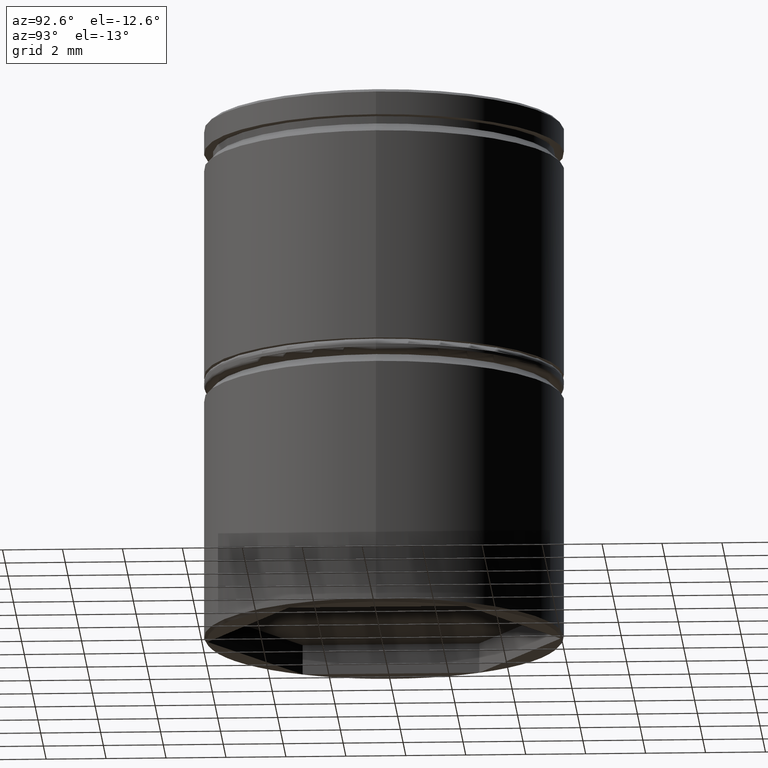
[diagram: clean part render]
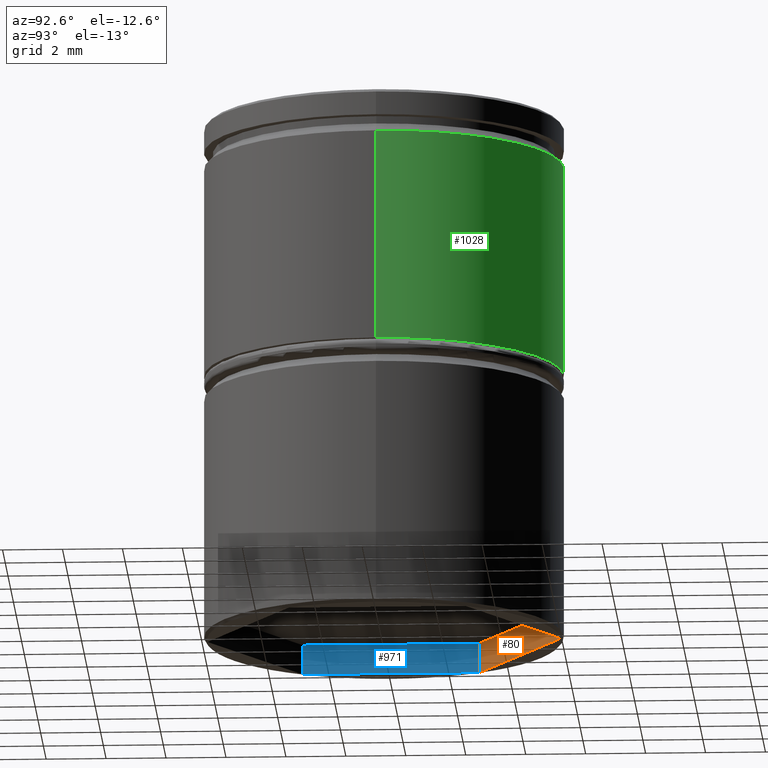
[diagram: same view with three faces highlighted in distinct colors, each labeled with its STEP entity id]
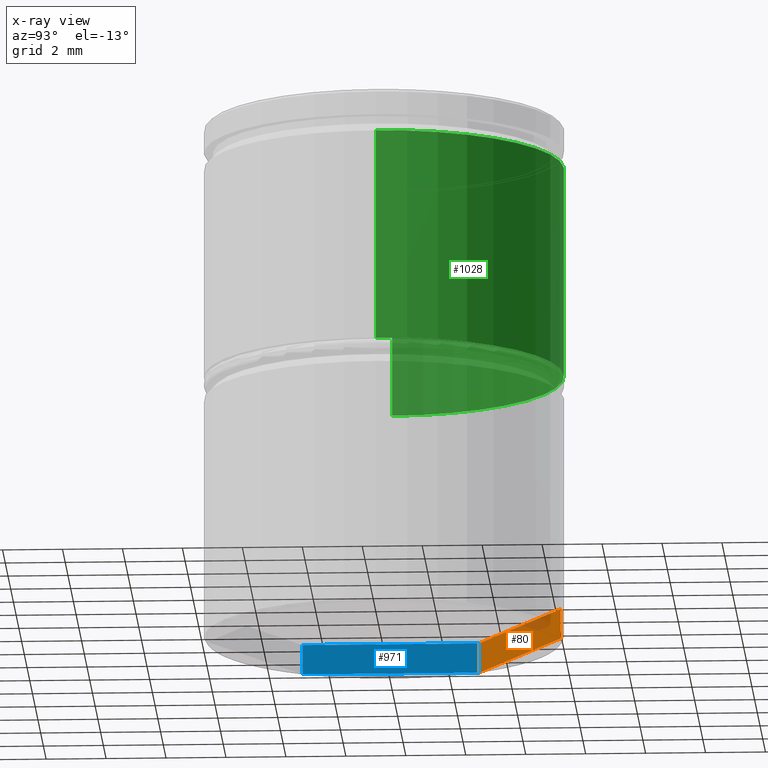
[diagram: x-ray of the same camera — body ghosted, the three highlighted faces saturated]
A machine part, auxiliary view with three faces highlighted in distinct colors.
The next image is the same camera in x-ray (body ghosted, the three faces saturated) — at least one of them is partly hidden behind the body in this view.
Their STEP definitions:

[orange] entity #80 — the highlighted planar face has unit normal (-0.5, 0.866, 0).
#12 = CARTESIAN_POINT ( 'NONE',  ( -5.100000000000000533, 2.944486372867091806, -16.50000000000000000 ) ) ;
#80 = ADVANCED_FACE ( 'NONE', ( #333 ), #350, .F. ) ;
#85 = CARTESIAN_POINT ( 'NONE',  ( -5.100000000000000533, 2.944486372867091806, -17.50000000000000000 ) ) ;
#113 = CARTESIAN_POINT ( 'NONE',  ( -5.100000000000000533, 2.944486372867091806, -16.50000000000000000 ) ) ;
#189 = VERTEX_POINT ( 'NONE', #113 ) ;
#213 = DIRECTION ( 'NONE',  ( -0.000000000000000000, -0.000000000000000000, -1.000000000000000000 ) ) ;
#281 = AXIS2_PLACEMENT_3D ( 'NONE', #12, #343, #711 ) ;
#290 = CARTESIAN_POINT ( 'NONE',  ( -5.100000000000000533, 2.944486372867091806, -16.50000000000000000 ) ) ;
#318 = VERTEX_POINT ( 'NONE', #339 ) ;
#328 = CARTESIAN_POINT ( 'NONE',  ( -5.100000000000000533, 2.944486372867091806, -16.50000000000000000 ) ) ;
#333 = FACE_OUTER_BOUND ( 'NONE', #979, .T. ) ;
#337 = DIRECTION ( 'NONE',  ( 0.8660254037844389297, 0.4999999999999995559, 0.000000000000000000 ) ) ;
#339 = CARTESIAN_POINT ( 'NONE',  ( -5.100000000000000533, 2.944486372867091806, -17.50000000000000000 ) ) ;
#343 = DIRECTION ( 'NONE',  ( -0.4999999999999995004, 0.8660254037844389297, 0.000000000000000000 ) ) ;
#350 = PLANE ( 'NONE',  #281 ) ;
#368 = ORIENTED_EDGE ( 'NONE', *, *, #581, .F. ) ;
#409 = CARTESIAN_POINT ( 'NONE',  ( 0.000000000000000000, 5.888972745734180059, -16.50000000000000000 ) ) ;
#431 = VERTEX_POINT ( 'NONE', #833 ) ;
#448 = CARTESIAN_POINT ( 'NONE',  ( 0.000000000000000000, 5.888972745734180059, -16.50000000000000000 ) ) ;
#543 = ORIENTED_EDGE ( 'NONE', *, *, #756, .T. ) ;
#555 = ORIENTED_EDGE ( 'NONE', *, *, #784, .T. ) ;
#581 = EDGE_CURVE ( 'NONE', #786, #431, #1007, .T. ) ;
#634 = LINE ( 'NONE', #328, #982 ) ;
#687 = ORIENTED_EDGE ( 'NONE', *, *, #1020, .F. ) ;
#711 = DIRECTION ( 'NONE',  ( -0.8660254037844389297, -0.4999999999999995004, 0.000000000000000000 ) ) ;
#731 = VECTOR ( 'NONE', #337, 1000.000000000000114 ) ;
#756 = EDGE_CURVE ( 'NONE', #318, #431, #867, .T. ) ;
#765 = VECTOR ( 'NONE', #213, 1000.000000000000000 ) ;
#768 = DIRECTION ( 'NONE',  ( 0.8660254037844389297, 0.4999999999999995559, 0.000000000000000000 ) ) ;
#784 = EDGE_CURVE ( 'NONE', #189, #318, #634, .T. ) ;
#786 = VERTEX_POINT ( 'NONE', #409 ) ;
#833 = CARTESIAN_POINT ( 'NONE',  ( 0.000000000000000000, 5.888972745734180059, -17.50000000000000000 ) ) ;
#867 = LINE ( 'NONE', #85, #731 ) ;
#876 = VECTOR ( 'NONE', #768, 1000.000000000000114 ) ;
#927 = LINE ( 'NONE', #290, #876 ) ;
#951 = DIRECTION ( 'NONE',  ( -0.000000000000000000, -0.000000000000000000, -1.000000000000000000 ) ) ;
#979 = EDGE_LOOP ( 'NONE', ( #543, #368, #687, #555 ) ) ;
#982 = VECTOR ( 'NONE', #951, 1000.000000000000000 ) ;
#1007 = LINE ( 'NONE', #448, #765 ) ;
#1020 = EDGE_CURVE ( 'NONE', #189, #786, #927, .T. ) ;

[blue] entity #971 — the highlighted planar face has unit normal (-1, 0, 0).
#27 = EDGE_CURVE ( 'NONE', #218, #721, #1006, .T. ) ;
#38 = DIRECTION ( 'NONE',  ( 0.000000000000000000, 0.000000000000000000, 1.000000000000000000 ) ) ;
#54 = DIRECTION ( 'NONE',  ( -0.000000000000000000, -0.000000000000000000, -1.000000000000000000 ) ) ;
#113 = CARTESIAN_POINT ( 'NONE',  ( -5.100000000000000533, 2.944486372867091806, -16.50000000000000000 ) ) ;
#119 = CARTESIAN_POINT ( 'NONE',  ( -5.100000000000000533, -2.944486372867089585, -16.50000000000000000 ) ) ;
#189 = VERTEX_POINT ( 'NONE', #113 ) ;
#211 = VECTOR ( 'NONE', #54, 1000.000000000000000 ) ;
#218 = VERTEX_POINT ( 'NONE', #119 ) ;
#273 = ORIENTED_EDGE ( 'NONE', *, *, #806, .F. ) ;
#286 = PLANE ( 'NONE',  #341 ) ;
#297 = DIRECTION ( 'NONE',  ( 0.000000000000000000, 1.000000000000000000, 0.000000000000000000 ) ) ;
#318 = VERTEX_POINT ( 'NONE', #339 ) ;
#320 = CARTESIAN_POINT ( 'NONE',  ( -5.100000000000000533, -2.944486372867089585, -17.50000000000000000 ) ) ;
#328 = CARTESIAN_POINT ( 'NONE',  ( -5.100000000000000533, 2.944486372867091806, -16.50000000000000000 ) ) ;
#339 = CARTESIAN_POINT ( 'NONE',  ( -5.100000000000000533, 2.944486372867091806, -17.50000000000000000 ) ) ;
#341 = AXIS2_PLACEMENT_3D ( 'NONE', #831, #754, #38 ) ;
#393 = VECTOR ( 'NONE', #961, 1000.000000000000000 ) ;
#610 = CARTESIAN_POINT ( 'NONE',  ( -5.100000000000000533, -2.944486372867089585, -16.50000000000000000 ) ) ;
#613 = LINE ( 'NONE', #1010, #796 ) ;
#634 = LINE ( 'NONE', #328, #982 ) ;
#639 = LINE ( 'NONE', #643, #393 ) ;
#643 = CARTESIAN_POINT ( 'NONE',  ( -5.100000000000000533, -2.944486372867089585, -16.50000000000000000 ) ) ;
#647 = ORIENTED_EDGE ( 'NONE', *, *, #784, .F. ) ;
#672 = FACE_OUTER_BOUND ( 'NONE', #949, .T. ) ;
#721 = VERTEX_POINT ( 'NONE', #320 ) ;
#754 = DIRECTION ( 'NONE',  ( -1.000000000000000000, 0.000000000000000000, 0.000000000000000000 ) ) ;
#784 = EDGE_CURVE ( 'NONE', #189, #318, #634, .T. ) ;
#796 = VECTOR ( 'NONE', #297, 1000.000000000000000 ) ;
#803 = ORIENTED_EDGE ( 'NONE', *, *, #27, .T. ) ;
#806 = EDGE_CURVE ( 'NONE', #218, #189, #639, .T. ) ;
#831 = CARTESIAN_POINT ( 'NONE',  ( -5.100000000000000533, -2.944486372867089585, -16.50000000000000000 ) ) ;
#834 = ORIENTED_EDGE ( 'NONE', *, *, #998, .T. ) ;
#949 = EDGE_LOOP ( 'NONE', ( #834, #647, #273, #803 ) ) ;
#951 = DIRECTION ( 'NONE',  ( -0.000000000000000000, -0.000000000000000000, -1.000000000000000000 ) ) ;
#961 = DIRECTION ( 'NONE',  ( 0.000000000000000000, 1.000000000000000000, 0.000000000000000000 ) ) ;
#971 = ADVANCED_FACE ( 'NONE', ( #672 ), #286, .F. ) ;
#982 = VECTOR ( 'NONE', #951, 1000.000000000000000 ) ;
#998 = EDGE_CURVE ( 'NONE', #721, #318, #613, .T. ) ;
#1006 = LINE ( 'NONE', #610, #211 ) ;
#1010 = CARTESIAN_POINT ( 'NONE',  ( -5.100000000000000533, -2.944486372867089585, -17.50000000000000000 ) ) ;

[green] entity #1028 — the highlighted cylindrical surface (partial cylindrical patch) has radius 6 mm, axis along (-0, -0, 1).
#13 = CIRCLE ( 'NONE', #31, 6.000000000000000000 ) ;
#28 = CARTESIAN_POINT ( 'NONE',  ( 6.000000000000000000, 0.000000000000000000, -8.500000000000000000 ) ) ;
#30 = VECTOR ( 'NONE', #373, 1000.000000000000000 ) ;
#31 = AXIS2_PLACEMENT_3D ( 'NONE', #257, #565, #177 ) ;
#41 = DIRECTION ( 'NONE',  ( 1.000000000000000000, 0.000000000000000000, 0.000000000000000000 ) ) ;
#48 = AXIS2_PLACEMENT_3D ( 'NONE', #440, #753, #41 ) ;
#76 = CARTESIAN_POINT ( 'NONE',  ( 6.000000000000000000, 0.000000000000000000, -1.424999999999999156 ) ) ;
#78 = CARTESIAN_POINT ( 'NONE',  ( -6.000000000000000000, 7.347880794884119736E-16, -8.500000000000000000 ) ) ;
#111 = DIRECTION ( 'NONE',  ( -0.000000000000000000, -0.000000000000000000, 1.000000000000000000 ) ) ;
#151 = CYLINDRICAL_SURFACE ( 'NONE', #256, 6.000000000000000000 ) ;
#177 = DIRECTION ( 'NONE',  ( 1.000000000000000000, 0.000000000000000000, 0.000000000000000000 ) ) ;
#209 = LINE ( 'NONE', #757, #30 ) ;
#233 = DIRECTION ( 'NONE',  ( 1.000000000000000000, 0.000000000000000000, 0.000000000000000000 ) ) ;
#256 = AXIS2_PLACEMENT_3D ( 'NONE', #922, #535, #233 ) ;
#257 = CARTESIAN_POINT ( 'NONE',  ( 0.000000000000000000, 0.000000000000000000, -1.424999999999999156 ) ) ;
#262 = VERTEX_POINT ( 'NONE', #76 ) ;
#351 = LINE ( 'NONE', #988, #799 ) ;
#373 = DIRECTION ( 'NONE',  ( -0.000000000000000000, -0.000000000000000000, 1.000000000000000000 ) ) ;
#440 = CARTESIAN_POINT ( 'NONE',  ( 0.000000000000000000, 0.000000000000000000, -8.500000000000000000 ) ) ;
#455 = ORIENTED_EDGE ( 'NONE', *, *, #490, .T. ) ;
#476 = EDGE_CURVE ( 'NONE', #882, #262, #351, .T. ) ;
#490 = EDGE_CURVE ( 'NONE', #882, #759, #686, .T. ) ;
#491 = CARTESIAN_POINT ( 'NONE',  ( -6.000000000000000000, 7.347880794884119736E-16, -1.424999999999999156 ) ) ;
#506 = EDGE_CURVE ( 'NONE', #759, #821, #209, .T. ) ;
#535 = DIRECTION ( 'NONE',  ( -0.000000000000000000, -0.000000000000000000, 1.000000000000000000 ) ) ;
#565 = DIRECTION ( 'NONE',  ( 0.000000000000000000, 0.000000000000000000, -1.000000000000000000 ) ) ;
#590 = ORIENTED_EDGE ( 'NONE', *, *, #506, .T. ) ;
#686 = CIRCLE ( 'NONE', #48, 6.000000000000000000 ) ;
#753 = DIRECTION ( 'NONE',  ( -0.000000000000000000, -0.000000000000000000, 1.000000000000000000 ) ) ;
#757 = CARTESIAN_POINT ( 'NONE',  ( -6.000000000000000000, 7.347880794884119736E-16, 0.000000000000000000 ) ) ;
#759 = VERTEX_POINT ( 'NONE', #78 ) ;
#799 = VECTOR ( 'NONE', #111, 1000.000000000000000 ) ;
#810 = EDGE_CURVE ( 'NONE', #821, #262, #13, .T. ) ;
#821 = VERTEX_POINT ( 'NONE', #491 ) ;
#854 = FACE_OUTER_BOUND ( 'NONE', #871, .T. ) ;
#871 = EDGE_LOOP ( 'NONE', ( #455, #590, #906, #1003 ) ) ;
#882 = VERTEX_POINT ( 'NONE', #28 ) ;
#906 = ORIENTED_EDGE ( 'NONE', *, *, #810, .T. ) ;
#922 = CARTESIAN_POINT ( 'NONE',  ( 0.000000000000000000, 0.000000000000000000, 0.000000000000000000 ) ) ;
#988 = CARTESIAN_POINT ( 'NONE',  ( 6.000000000000000000, 0.000000000000000000, 0.000000000000000000 ) ) ;
#1003 = ORIENTED_EDGE ( 'NONE', *, *, #476, .F. ) ;
#1028 = ADVANCED_FACE ( 'NONE', ( #854 ), #151, .T. ) ;